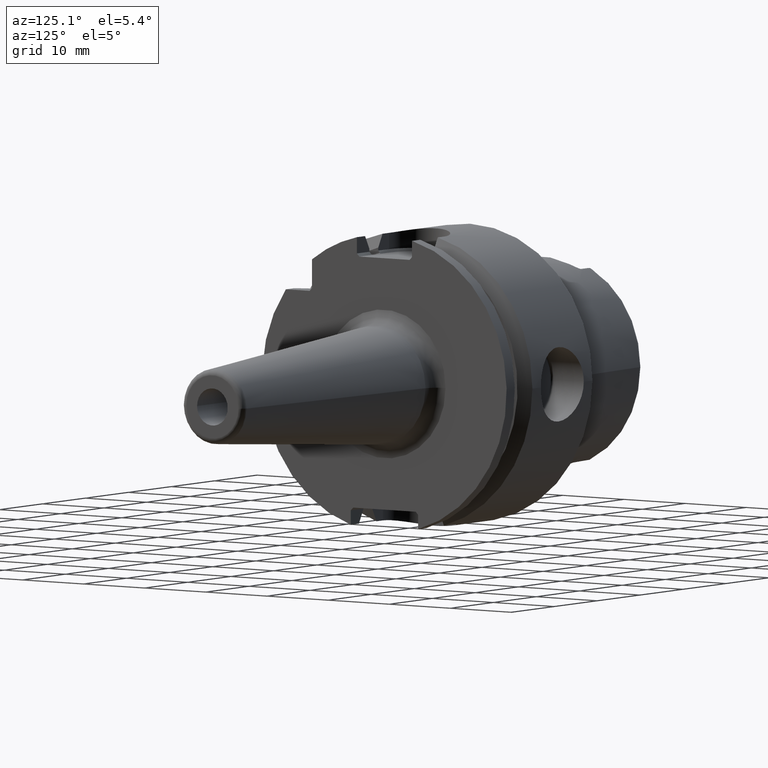
[diagram: clean part render]
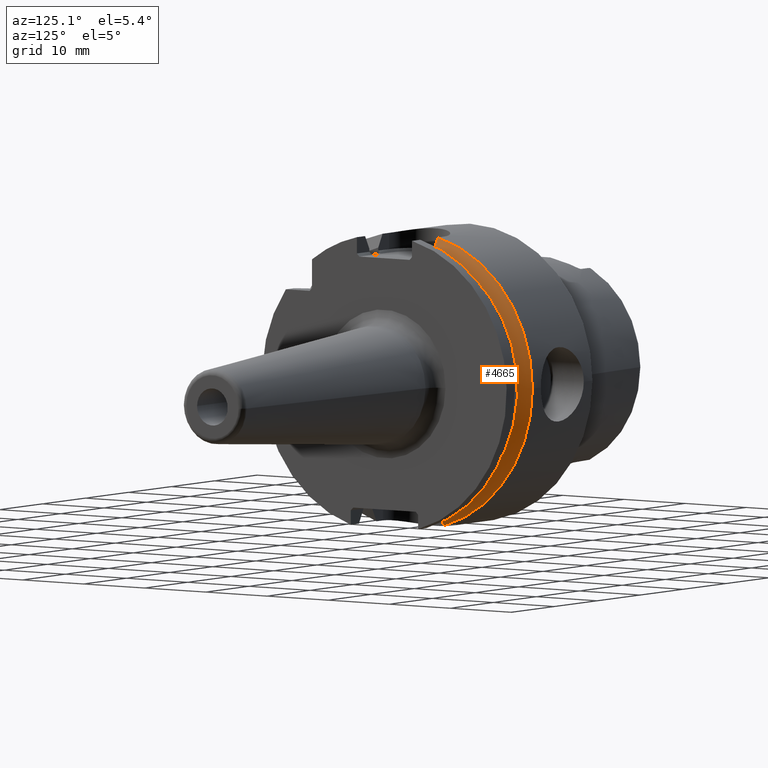
[diagram: same view with one face highlighted and labeled with its STEP entity id]
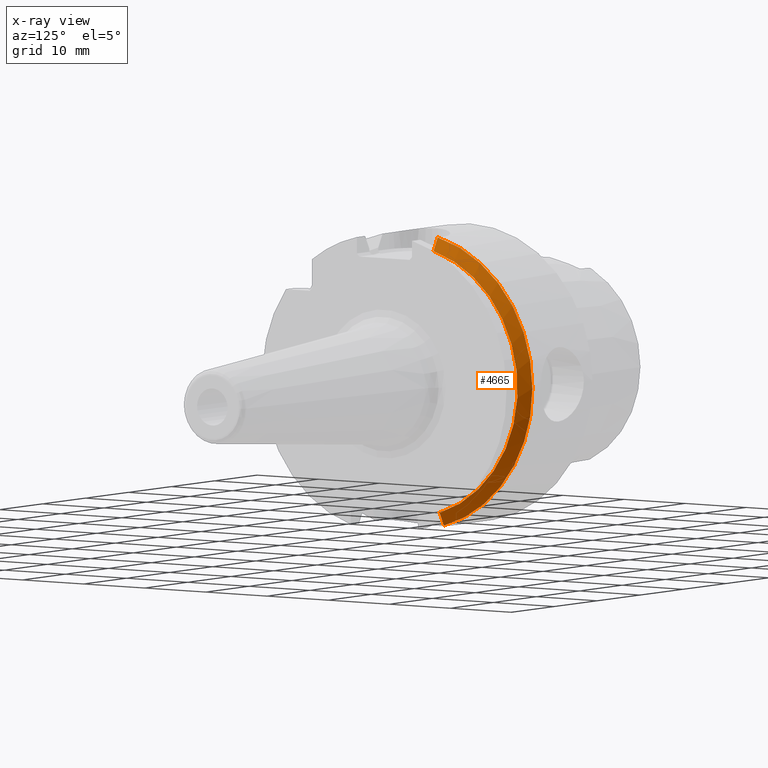
[diagram: x-ray of the same camera — body ghosted, the highlighted face saturated]
A machine part, auxiliary view. The second image highlights one B-rep face of the part: STEP entity #4665.
The next image is the same camera in x-ray: the body ghosted, the highlighted face saturated — about 0% of this face is hidden behind the body in this view.
In plain terms, the highlighted conical surface has half-angle 60 deg.
Its self-contained STEP definition (entity closure, byte-faithful):
#886=CARTESIAN_POINT('',(1.396484030111E1,0.E0,0.E0));
#887=DIRECTION('',(1.E0,0.E0,0.E0));
#888=DIRECTION('',(0.E0,1.E0,0.E0));
#889=AXIS2_PLACEMENT_3D('',#886,#887,#888);
#1123=CARTESIAN_POINT('',(1.396484030111E1,0.E0,0.E0));
#1124=DIRECTION('',(1.E0,0.E0,0.E0));
#1125=DIRECTION('',(0.E0,2.75875E-1,-9.611935207725E-1));
#1126=AXIS2_PLACEMENT_3D('',#1123,#1124,#1125);
#1376=CARTESIAN_POINT('',(1.396484030111E1,5.5175E0,-1.922387041545E1));
#1377=CARTESIAN_POINT('',(1.408007416075E1,5.5175E0,-1.901622138812E1));
#1378=CARTESIAN_POINT('',(1.430762367067E1,5.5175E0,-1.860566967499E1));
#1379=CARTESIAN_POINT('',(1.464010814609E1,5.5175E0,-1.800420325575E1));
#1380=CARTESIAN_POINT('',(1.485600540526E1,5.5175E0,-1.761253540924E1));
#1381=CARTESIAN_POINT('',(1.49625E1,5.5175E0,-1.741904925329E1));
#1406=CARTESIAN_POINT('',(1.49625E1,0.E0,0.E0));
#1407=DIRECTION('',(1.E0,0.E0,0.E0));
#1408=DIRECTION('',(0.E0,3.019647099833E-1,-9.533191039336E-1));
#1409=AXIS2_PLACEMENT_3D('',#1406,#1407,#1408);
#1424=CARTESIAN_POINT('',(1.49625E1,4.5145E0,1.770551814798E1));
#1425=CARTESIAN_POINT('',(1.485552884249E1,4.5145E0,1.789672560819E1));
#1426=CARTESIAN_POINT('',(1.463899660997E1,4.5145E0,1.828339173494E1));
#1427=CARTESIAN_POINT('',(1.430649088821E1,4.5145E0,1.887606128139E1));
#1428=CARTESIAN_POINT('',(1.407958891288E1,4.5145E0,1.927980537228E1));
#1429=CARTESIAN_POINT('',(1.396484030111E1,4.5145E0,1.948382123070E1));
#2852=CARTESIAN_POINT('',(1.49625E1,4.5145E0,1.770551814798E1));
#2854=VERTEX_POINT('',#2852);
#2860=VERTEX_POINT('',#1429);
#2862=CARTESIAN_POINT('',(1.49625E1,5.5175E0,-1.741904925329E1));
#2864=VERTEX_POINT('',#2862);
#2870=VERTEX_POINT('',#1376);
#3032=CARTESIAN_POINT('',(1.396484030111E1,2.E1,0.E0));
#3033=VERTEX_POINT('',#3032);
#4652=CARTESIAN_POINT('',(1.446367015055E1,0.E0,0.E0));
#4653=DIRECTION('',(-1.E0,0.E0,0.E0));
#4654=DIRECTION('',(0.E0,1.E0,0.E0));
#4655=AXIS2_PLACEMENT_3D('',#4652,#4653,#4654);
#4656=CONICAL_SURFACE('',#4655,1.913600135643E1,6.E1);
#4657=ORIENTED_EDGE('',*,*,#4146,.F.);
#4658=ORIENTED_EDGE('',*,*,#4278,.F.);
#4659=ORIENTED_EDGE('',*,*,#4629,.T.);
#4660=ORIENTED_EDGE('',*,*,#4442,.T.);
#4662=ORIENTED_EDGE('',*,*,#4661,.T.);
#4663=EDGE_LOOP('',(#4657,#4658,#4659,#4660,#4662));
#4664=FACE_OUTER_BOUND('',#4663,.F.);
#4665=ADVANCED_FACE('',(#4664),#4656,.T.);
#890=CIRCLE('',#889,2.E1);
#1127=CIRCLE('',#1126,2.E1);
#1382=B_SPLINE_CURVE_WITH_KNOTS('',3,(#1376,#1377,#1378,#1379,#1380,#1381),
.UNSPECIFIED.,.F.,.F.,(4,1,1,4),(0.E0,3.333333333333E-1,6.666666666667E-1,1.E0),
.UNSPECIFIED.);
#1410=CIRCLE('',#1409,1.827200271285E1);
#1430=B_SPLINE_CURVE_WITH_KNOTS('',3,(#1424,#1425,#1426,#1427,#1428,#1429),
.UNSPECIFIED.,.F.,.F.,(4,1,1,4),(0.E0,3.333333333333E-1,6.666666666667E-1,1.E0),
.UNSPECIFIED.);
#4146=EDGE_CURVE('',#3033,#2860,#890,.T.);
#4278=EDGE_CURVE('',#2870,#3033,#1127,.T.);
#4442=EDGE_CURVE('',#2864,#2854,#1410,.T.);
#4629=EDGE_CURVE('',#2870,#2864,#1382,.T.);
#4661=EDGE_CURVE('',#2854,#2860,#1430,.T.);